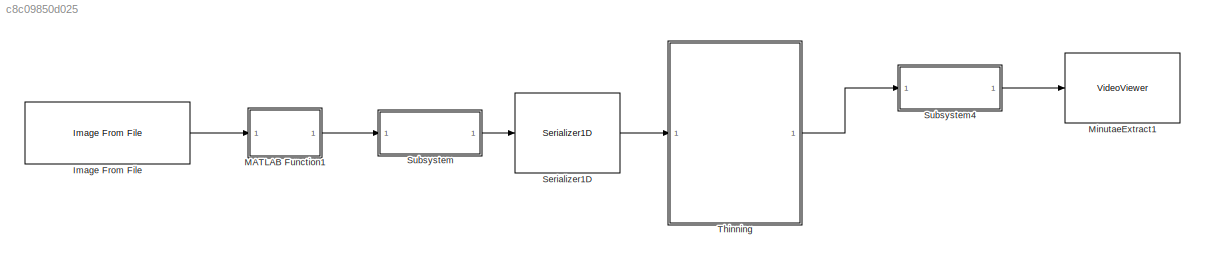
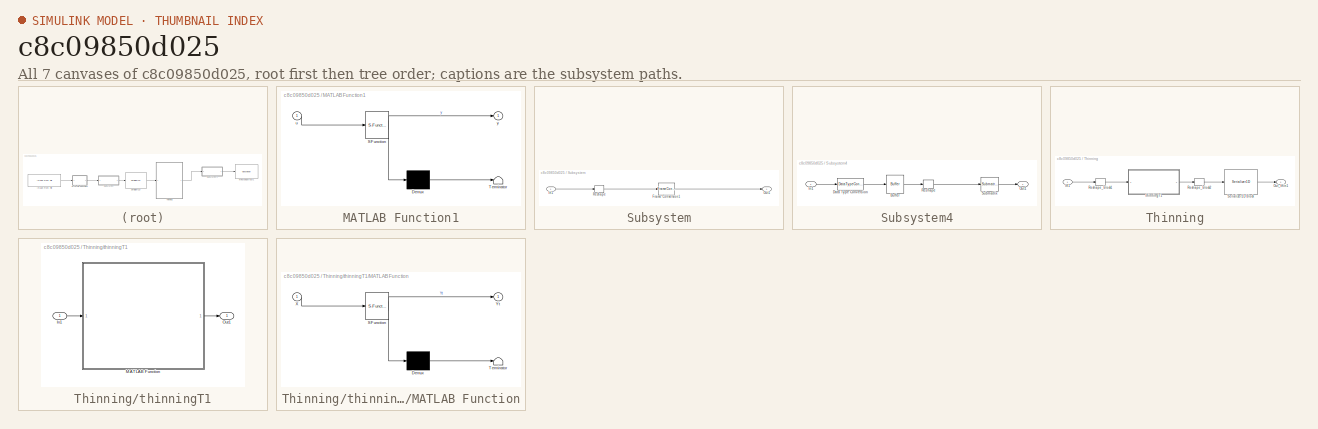
[diagram: thumbnail index - all 7 canvases of the model, root first then tree order]
MODEL slx_c8c09850d025
KIND model
CONFIG AbsTol = auto
CONFIG EnableMultiTasking = off
CONFIG FixedStep = auto
CONFIG MaxStep = auto
CONFIG MinStep = auto
CONFIG RelTol = 1e-3
CONFIG SampleTimeConstraint = Unconstrained
CONFIG Solver = FixedStepDiscrete
CONFIG SolverName = FixedStepDiscrete
CONFIG StartTime = 0.0
CONFIG StopTime = 10.0
BLOCK [Reference] Image From File  REF=visionsources/Image From File
  Ports = [0, 1]
  SourceBlock = visionsources/Image From File
  SourceProductBaseCode = VP
  SourceProductName = Computer Vision System Toolbox
  SourceType = Image From File
  Tag = vipblks_nd
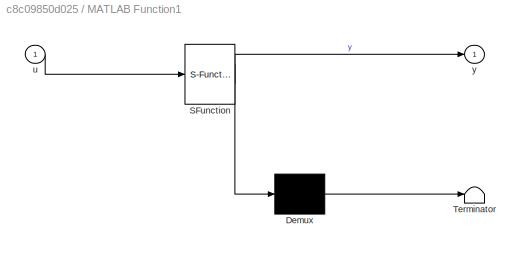
BLOCK [SubSystem] MATLAB Function1
  ErrorFcn = Stateflow.Translate.translate
  PermitHierarchicalResolution = ExplicitOnly
  Ports = [1, 1]
  RequestExecContextInheritance = off
  SFBlockType = MATLAB Function
  TreatAsAtomicUnit = on
BLOCK [Demux] MATLAB Function1/ Demux 
  Outputs = 1
  Ports = [1, 1]
BLOCK [S-Function] MATLAB Function1/ SFunction 
  EnableBusSupport = on
  FunctionName = sf_sfun
  PortCounts = [1 2]
  Ports = [1, 2]
  SFcnIsStateOwnerBlock = off
  SFunctionDeploymentMode = off
  Tag = Stateflow S-Function thinning1_131121 3
BLOCK [Terminator] MATLAB Function1/ Terminator 
BLOCK [Inport] MATLAB Function1/u
  IconDisplay = Port number
BLOCK [Outport] MATLAB Function1/y
  IconDisplay = Port number
BLOCK [VideoViewer] MinutaeExtract1
  FigPos = [399 902 376 593]
  Ports = [1]
  ScopeSpecificationString = vipscopes.VideoViewerScopeCfg('CurrentConfiguration', extmgr.ConfigurationSet(extmgr.Configuration('Core','General UI',true),extmgr.Configuration('Core','Source UI',true),extmgr.Configuration('Sources','WiredSimulink',true),extmgr.Configuration('Visuals','Video',true),extmgr.Configuration('Tools','Image Navigation Tools',true),extmgr.Configuration('Tools','Image Tool',true),extmgr.Configuration('T...<+75ch>
  colormapValue = gray(256)
BLOCK [Reference] Serializer1D  REF=hdlsllib/HDL Operations/Serializer1D
  Ports = [1, 1]
  SourceBlock = hdlsllib/HDL Operations/Serializer1D
  SourceProductBaseCode = HD
  SourceProductName = HDL Coder
  SourceType = Serializer1D
BLOCK [SubSystem] Subsystem
  Ports = [1, 1]
  RequestExecContextInheritance = off
BLOCK [FrameConversion] Subsystem/Frame Conversion1
  OutFrame = Sample-based
  Ports = [1, 1]
BLOCK [Inport] Subsystem/In1
  IconDisplay = Port number
BLOCK [Outport] Subsystem/Out1
  IconDisplay = Port number
BLOCK [Reshape] Subsystem/Reshape
  Ports = [1, 1]
BLOCK [SubSystem] Subsystem4
  Ports = [1, 1]
  RequestExecContextInheritance = off
BLOCK [Buffer] Subsystem4/Buffer
  N = 8192
  OutputFrames = off
BLOCK [DataTypeConversion] Subsystem4/Data Type Conversion
  RndMeth = Floor
  SaturateOnIntegerOverflow = off
BLOCK [Inport] Subsystem4/In1
  IconDisplay = Port number
BLOCK [Outport] Subsystem4/Out1
  IconDisplay = Port number
BLOCK [Reshape] Subsystem4/Reshape
  OutputDimensionality = Customize
  OutputDimensions = [128,64]
  Ports = [1, 1]
BLOCK [Reference] Subsystem4/Submatrix  REF=dspmtrx3/Submatrix
  Ports = [1, 1]
  SourceBlock = dspmtrx3/Submatrix
  SourceProductBaseCode = DS
  SourceProductName = DSP System Toolbox
  SourceType = Submatrix
BLOCK [SubSystem] Thinning
  Ports = [1, 1]
  RequestExecContextInheritance = off
  TreatAsAtomicUnit = on
BLOCK [Inport] Thinning/In1
  IconDisplay = Port number
BLOCK [Outport] Thinning/Out_thin1
  IconDisplay = Port number
BLOCK [Reshape] Thinning/Reshape_block1
  OutputDimensionality = Customize
  OutputDimensions = [128,64]
  Ports = [1, 1]
BLOCK [Reshape] Thinning/Reshape_block2
  OutputDimensionality = Column vector (2-D)
  OutputDimensions = [128,64]
  Ports = [1, 1]
BLOCK [Reference] Thinning/Serializer1D block  REF=hdlsllib/HDL Operations/Serializer1D
  Ports = [1, 1]
  SourceBlock = hdlsllib/HDL Operations/Serializer1D
  SourceProductBaseCode = HD
  SourceProductName = HDL Coder
  SourceType = Serializer1D
BLOCK [SubSystem] Thinning/thinningT1
  Ports = [1, 1]
  RequestExecContextInheritance = off
  TreatAsAtomicUnit = on
BLOCK [Inport] Thinning/thinningT1/In1
  IconDisplay = Port number
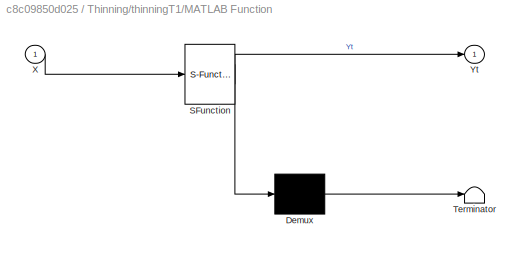
BLOCK [SubSystem] Thinning/thinningT1/MATLAB Function
  ErrorFcn = Stateflow.Translate.translate
  PermitHierarchicalResolution = ExplicitOnly
  Ports = [1, 1]
  RequestExecContextInheritance = off
  SFBlockType = MATLAB Function
  TreatAsAtomicUnit = on
BLOCK [Demux] Thinning/thinningT1/MATLAB Function/ Demux 
  Outputs = 1
  Ports = [1, 1]
BLOCK [S-Function] Thinning/thinningT1/MATLAB Function/ SFunction 
  EnableBusSupport = on
  FunctionName = sf_sfun
  PortCounts = [1 2]
  Ports = [1, 2]
  SFcnIsStateOwnerBlock = off
  SFunctionDeploymentMode = off
  Tag = Stateflow S-Function thinning1_131121 5
BLOCK [Terminator] Thinning/thinningT1/MATLAB Function/ Terminator 
BLOCK [Inport] Thinning/thinningT1/MATLAB Function/X
  IconDisplay = Port number
BLOCK [Outport] Thinning/thinningT1/MATLAB Function/Yt
  IconDisplay = Port number
BLOCK [Outport] Thinning/thinningT1/Out1
  IconDisplay = Port number
LINE Image From File:1 -> MATLAB Function1:1
LINE MATLAB Function1:1 -> Subsystem:1
LINE Serializer1D:1 -> Thinning:1
LINE Subsystem/Frame Conversion1:1 -> Subsystem/Out1:1
LINE Subsystem/In1:1 -> Subsystem/Reshape:1
LINE Subsystem/Reshape:1 -> Subsystem/Frame Conversion1:1
LINE Subsystem4/Buffer:1 -> Subsystem4/Reshape:1
LINE Subsystem4/Data Type Conversion:1 -> Subsystem4/Buffer:1
LINE Subsystem4/In1:1 -> Subsystem4/Data Type Conversion:1
LINE Subsystem4/Reshape:1 -> Subsystem4/Submatrix:1
LINE Subsystem4/Submatrix:1 -> Subsystem4/Out1:1
LINE Subsystem4:1 -> MinutaeExtract1:1
LINE Subsystem:1 -> Serializer1D:1
LINE Thinning/In1:1 -> Thinning/Reshape_block1:1
LINE Thinning/Reshape_block1:1 -> Thinning/thinningT1:1
LINE Thinning/Reshape_block2:1 -> Thinning/Serializer1D block:1
LINE Thinning/Serializer1D block:1 -> Thinning/Out_thin1:1
LINE Thinning/thinningT1/In1:1 -> Thinning/thinningT1/MATLAB Function:1
LINE Thinning/thinningT1/MATLAB Function:1 -> Thinning/thinningT1/Out1:1
LINE Thinning/thinningT1:1 -> Thinning/Reshape_block2:1
LINE Thinning:1 -> Subsystem4:1
CHART MATLAB Function1 states=1 transitions=1
  STATE_LABEL 'eML_blk_kernel()'
  STATE_LABEL 'SCRIPT:\nfunction y = fcn(u)\n%#codegen\n%i = rgb2gray(u);\nb = u(100:227,150:213);\ny = imbinarize(b);\n%y = y(100:227,150:213);\n%y = imbinarize(r);\n\n'
CHART Thinning/thinningT1/MATLAB Function states=1 transitions=1
  STATE_LABEL 'eML_blk_kernel()'
  STATE_LABEL "SCRIPT:\nfunction Yt=thinningTh(X)\n%img = imread ('2_4.jpg'); \n%Xr = rgb2gray(img);\n%%%X = imbinarize(Xr);\n%X = X(1:128,1:64);\n[M,N]=size(X);\nYt = false(M,N);\nY=false(M,N,20);\nZ=false(M,N,20);\nY(:,:,1)=X;\nZ(:,:,1)=X;\nfor k=2:20\n    Y(:,:,k)=Y(:,:,k-1);\n    for i=2:M-1\n        for j=2:N-1\n            y11=Y(i-1,j-1,k);\n            y12=Y(i-1,j,k);\n            y13=Y(i-1,j+1,k);\n            y21=Y(i,j-1,...<+1269ch>"
